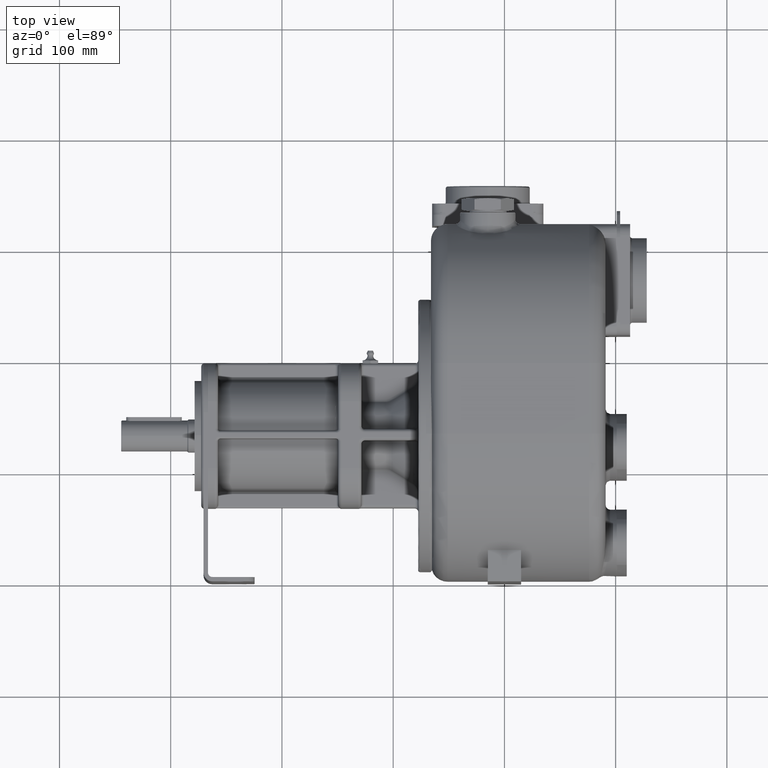
[diagram: clean part render]
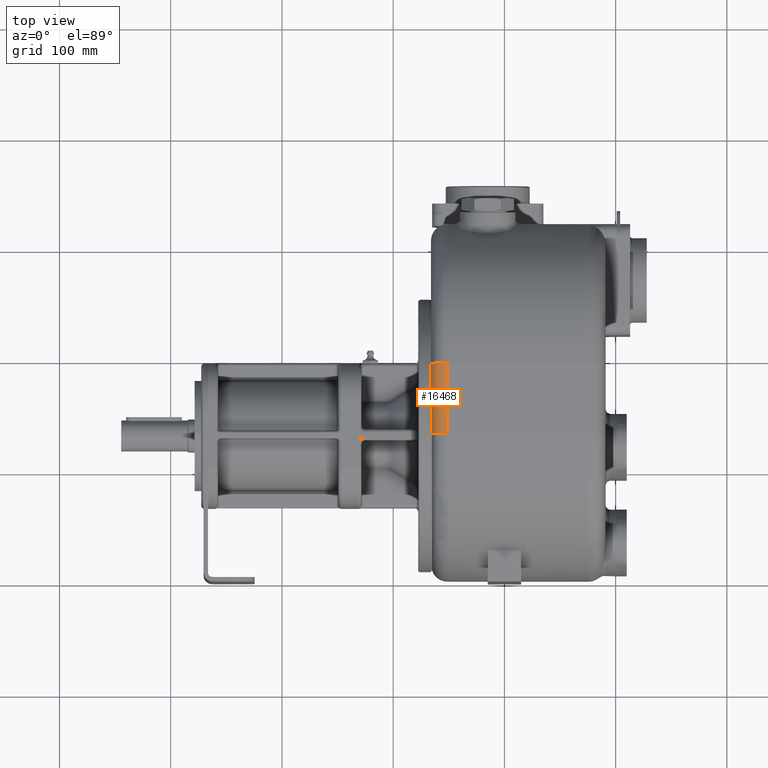
[diagram: same view with one face highlighted and labeled with its STEP entity id]
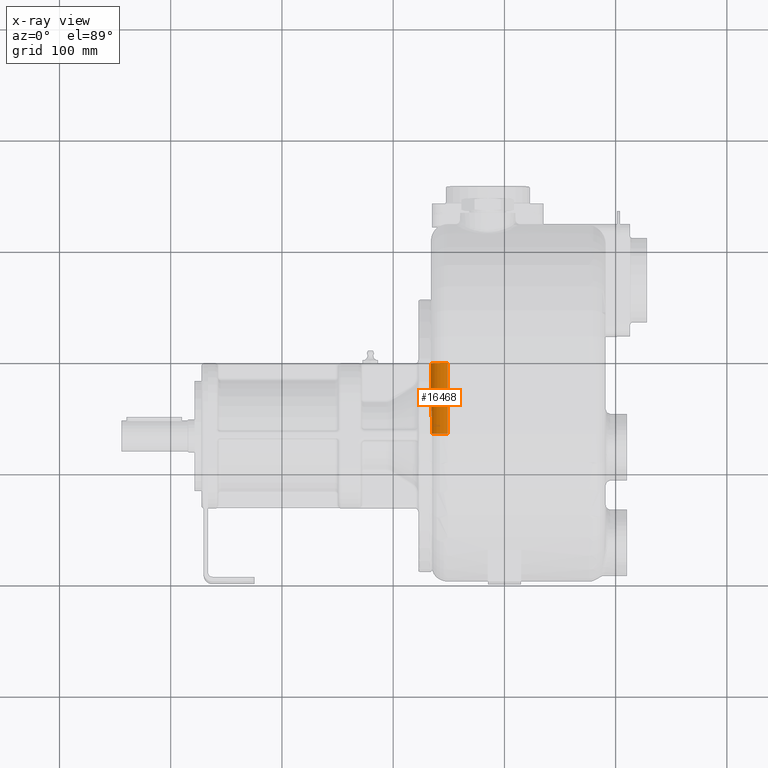
[diagram: x-ray of the same camera — body ghosted, the highlighted face saturated]
A machine part, top view. The second image highlights one B-rep face of the part: STEP entity #16468.
The next image is the same camera in x-ray: the body ghosted, the highlighted face saturated — about 0% of this face is hidden behind the body in this view.
In plain terms, the highlighted cylindrical surface (edge-blend (fillet) strip) has radius 15 mm, axis along (0, 1, 0).
Its self-contained STEP definition (entity closure, byte-faithful):
#2605=DIRECTION('',(0.E0,1.E0,3.318316183506E-14));
#2606=VECTOR('',#2605,2.526704454399E1);
#2607=CARTESIAN_POINT('',(-6.6E1,1.701043332774E2,1.16E2));
#2608=LINE('',#2607,#2606);
#2649=CARTESIAN_POINT('',(-6.505538092308E1,1.32E2,1.212389185055E2));
#2650=CARTESIAN_POINT('',(-6.505538092308E1,1.330762582155E2,1.212389185055E2));
#2651=CARTESIAN_POINT('',(-6.506238506771E1,1.351943840007E2,1.212201814615E2));
#2652=CARTESIAN_POINT('',(-6.509197447937E1,1.382690176466E2,1.211400631683E2));
#2653=CARTESIAN_POINT('',(-6.513865060212E1,1.412392493329E2,1.210107248545E2));
#2654=CARTESIAN_POINT('',(-6.520062194153E1,1.441142977106E2,1.208329140593E2));
#2655=CARTESIAN_POINT('',(-6.527378159161E1,1.468333661303E2,1.206130573651E2));
#2656=CARTESIAN_POINT('',(-6.535541831560E1,1.494234691315E2,1.203531931888E2));
#2657=CARTESIAN_POINT('',(-6.544271486640E1,1.518971582008E2,1.200551153614E2));
#2658=CARTESIAN_POINT('',(-6.553272489823E1,1.542649241470E2,1.197207326722E2));
#2659=CARTESIAN_POINT('',(-6.562257693157E1,1.565380795292E2,1.193515077121E2));
#2660=CARTESIAN_POINT('',(-6.570943789754E1,1.587278781936E2,1.189484355096E2));
#2661=CARTESIAN_POINT('',(-6.579021670818E1,1.608376631503E2,1.185137781567E2));
#2662=CARTESIAN_POINT('',(-6.586210266396E1,1.628766622175E2,1.180483579898E2));
#2663=CARTESIAN_POINT('',(-6.592160053505E1,1.648296854866E2,1.175587493242E2));
#2664=CARTESIAN_POINT('',(-6.596603921205E1,1.666864237250E2,1.170518688439E2));
#2665=CARTESIAN_POINT('',(-6.599369591062E1,1.684520759522E2,1.165305813362E2));
#2666=CARTESIAN_POINT('',(-6.6E1,1.695640452734E2,1.161774768463E2));
#2667=CARTESIAN_POINT('',(-6.6E1,1.701043332774E2,1.16E2));
#2669=CARTESIAN_POINT('',(-5.1E1,1.32E2,1.16E2));
#2670=DIRECTION('',(0.E0,1.E0,0.E0));
#2671=DIRECTION('',(-9.370253948718E-1,0.E0,3.492612336995E-1));
#2672=AXIS2_PLACEMENT_3D('',#2669,#2670,#2671);
#2674=CARTESIAN_POINT('',(-5.1E1,1.953713778214E2,1.16E2));
#2675=DIRECTION('',(0.E0,1.E0,0.E0));
#2676=DIRECTION('',(-1.E0,0.E0,0.E0));
#2677=AXIS2_PLACEMENT_3D('',#2674,#2675,#2676);
#3978=DIRECTION('',(0.E0,1.E0,0.E0));
#3979=VECTOR('',#3978,6.337137782135E1);
#3980=CARTESIAN_POINT('',(-5.1E1,1.32E2,1.31E2));
#3981=LINE('',#3980,#3979);
#11913=CARTESIAN_POINT('',(-5.1E1,1.32E2,1.31E2));
#11914=VERTEX_POINT('',#11913);
#11915=CARTESIAN_POINT('',(-5.1E1,1.953713778214E2,1.31E2));
#11916=VERTEX_POINT('',#11915);
#11919=CARTESIAN_POINT('',(-6.6E1,1.953713778214E2,1.16E2));
#11920=VERTEX_POINT('',#11919);
#12949=CARTESIAN_POINT('',(-6.6E1,1.701043332774E2,1.16E2));
#12951=VERTEX_POINT('',#12949);
#12953=VERTEX_POINT('',#2649);
#16454=CARTESIAN_POINT('',(-5.1E1,1.313130888365E2,1.16E2));
#16455=DIRECTION('',(0.E0,1.E0,0.E0));
#16456=DIRECTION('',(-1.E0,0.E0,0.E0));
#16457=AXIS2_PLACEMENT_3D('',#16454,#16455,#16456);
#16458=CYLINDRICAL_SURFACE('',#16457,1.5E1);
#16459=ORIENTED_EDGE('',*,*,#16380,.T.);
#16460=ORIENTED_EDGE('',*,*,#16406,.T.);
#16462=ORIENTED_EDGE('',*,*,#16461,.T.);
#16464=ORIENTED_EDGE('',*,*,#16463,.F.);
#16465=ORIENTED_EDGE('',*,*,#16434,.F.);
#16466=EDGE_LOOP('',(#16459,#16460,#16462,#16464,#16465));
#16467=FACE_OUTER_BOUND('',#16466,.F.);
#16468=ADVANCED_FACE('',(#16467),#16458,.T.);
#2668=B_SPLINE_CURVE_WITH_KNOTS('',3,(#2649,#2650,#2651,#2652,#2653,#2654,#2655,
#2656,#2657,#2658,#2659,#2660,#2661,#2662,#2663,#2664,#2665,#2666,#2667),
.UNSPECIFIED.,.F.,.F.,(4,1,1,1,1,1,1,1,1,1,1,1,1,1,1,1,4),(0.E0,6.25E-2,1.25E-1,
1.875E-1,2.5E-1,3.125E-1,3.75E-1,4.375E-1,5.E-1,5.625E-1,6.25E-1,6.875E-1,
7.5E-1,8.125E-1,8.75E-1,9.375E-1,1.E0),.UNSPECIFIED.);
#2673=CIRCLE('',#2672,1.5E1);
#2678=CIRCLE('',#2677,1.5E1);
#16380=EDGE_CURVE('',#12953,#12951,#2668,.T.);
#16406=EDGE_CURVE('',#12951,#11920,#2608,.T.);
#16434=EDGE_CURVE('',#12953,#11914,#2673,.T.);
#16461=EDGE_CURVE('',#11920,#11916,#2678,.T.);
#16463=EDGE_CURVE('',#11914,#11916,#3981,.T.);